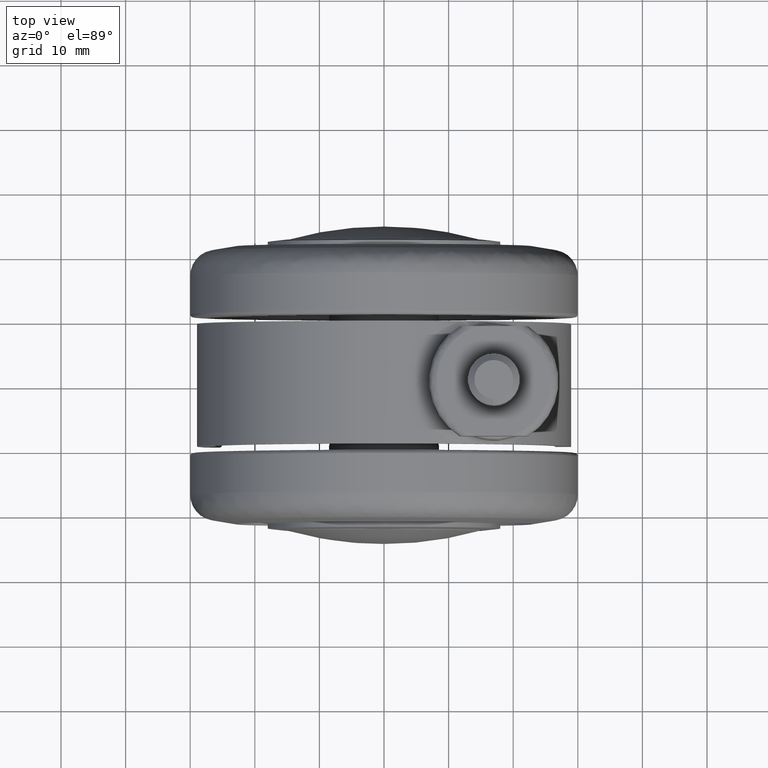
[diagram: clean part render]
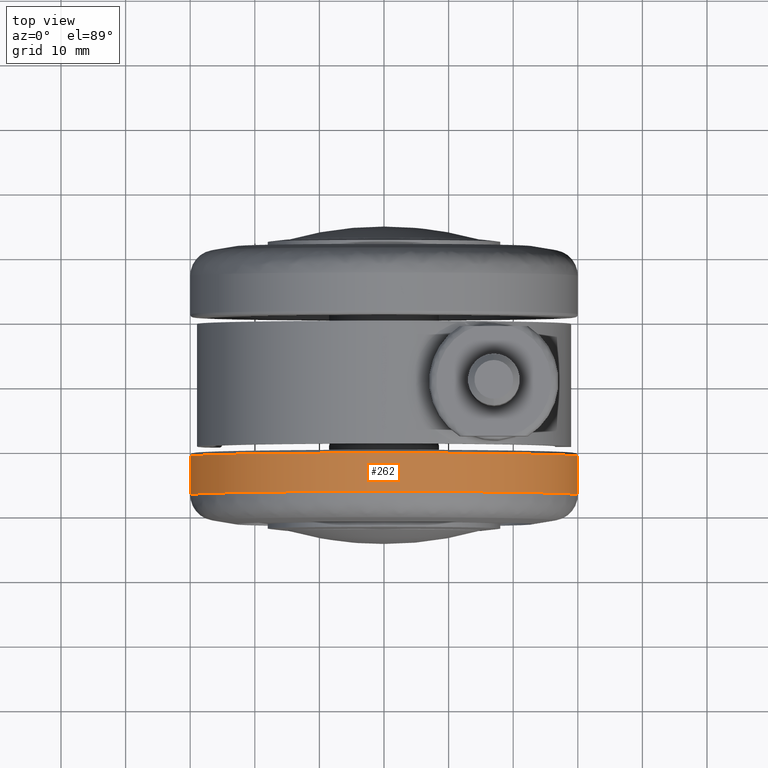
[diagram: same view with one face highlighted and labeled with its STEP entity id]
A machine part, top view. The second image highlights one B-rep face of the part: STEP entity #262.
In plain terms, the highlighted cylindrical surface (partial cylindrical patch) has radius 30 mm, axis along (-0, 1, -0).
Its self-contained STEP definition (entity closure, byte-faithful):
#262=ADVANCED_FACE('',(#1362),#1361,.T.);
#1361=CYLINDRICAL_SURFACE('',#3993,3.00000000000E+01);
#1362=FACE_OUTER_BOUND('',#3994,.T.);
#3990=CARTESIAN_POINT('',(0.00000000000E+00,0.00000000000E+00,5.47813987732E+00));
#3991=DIRECTION('',(-0.00000000000E+00,-0.00000000000E+00,-1.00000000000E+00));
#3992=DIRECTION('',(1.00000000000E+00,1.22464679915E-16,0.00000000000E+00));
#3993=AXIS2_PLACEMENT_3D('',#3990,#3991,#3992);
#3994=EDGE_LOOP('',(#5000,#5001,#5002,#5003));
#5000=ORIENTED_EDGE('',*,*,#5487,.T.);
#5001=ORIENTED_EDGE('',*,*,#5484,.T.);
#5002=ORIENTED_EDGE('',*,*,#5483,.T.);
#5003=ORIENTED_EDGE('',*,*,#5486,.F.);
#5483=EDGE_CURVE('',#7311,#7310,#7330,.T.);
#5484=EDGE_CURVE('',#7336,#7311,#7337,.T.);
#5486=EDGE_CURVE('',#7343,#7310,#7350,.T.);
#5487=EDGE_CURVE('',#7343,#7336,#7356,.T.);
#7310=VERTEX_POINT('',#9417);
#7311=VERTEX_POINT('',#9418);
#7330=CIRCLE('',#9433,3.00000000000E+01);
#7336=VERTEX_POINT('',#9434);
#7337=(BOUNDED_CURVE() B_SPLINE_CURVE(1,(#9435,#9436),.UNSPECIFIED.,.F.,.F.) B_SPLINE_CURVE_WITH_KNOTS((2,2),(8.33333347523E-02,9.16666668865E-01),.UNSPECIFIED.) CURVE() GEOMETRIC_REPRESENTATION_ITEM() RATIONAL_B_SPLINE_CURVE((1.00000000000E+00,1.00000000000E+00)) REPRESENTATION_ITEM('') );
#7343=VERTEX_POINT('',#9437);
#7350=(BOUNDED_CURVE() B_SPLINE_CURVE(1,(#9442,#9443),.UNSPECIFIED.,.F.,.F.) B_SPLINE_CURVE_WITH_KNOTS((2,2),(8.33333333333E-02,9.16666666667E-01),.UNSPECIFIED.) CURVE() GEOMETRIC_REPRESENTATION_ITEM() RATIONAL_B_SPLINE_CURVE((7.50000000000E-01,7.50000000000E-01)) REPRESENTATION_ITEM('') );
#7356=CIRCLE('',#9447,3.00000000000E+01);
#9417=CARTESIAN_POINT('',(-3.00000000000E+01,2.36847578587E-15,2.50000000000E+00));
#9418=CARTESIAN_POINT('',(3.00000000000E+01,0.00000000000E+00,2.50000000000E+00));
#9430=CARTESIAN_POINT('',(0.00000000000E+00,0.00000000000E+00,2.50000000000E+00));
#9431=DIRECTION('',(0.00000000000E+00,0.00000000000E+00,1.00000000000E+00));
#9432=DIRECTION('',(1.00000000000E+00,-1.22460635382E-16,0.00000000000E+00));
#9433=AXIS2_PLACEMENT_3D('',#9430,#9431,#9432);
#9434=CARTESIAN_POINT('',(3.00000000000E+01,-2.36847578587E-15,8.45627996854E+00));
#9435=CARTESIAN_POINT('',(3.00000000000E+01,3.67394039744E-15,8.45627995840E+00));
#9436=CARTESIAN_POINT('',(3.00000000000E+01,3.67394039744E-15,2.49999998428E+00));
#9437=CARTESIAN_POINT('',(-3.00000000000E+01,3.67394039744E-15,8.45627996854E+00));
#9442=CARTESIAN_POINT('',(-3.00000000000E+01,-3.55271367880E-15,8.45627996854E+00));
#9443=CARTESIAN_POINT('',(-3.00000000000E+01,-3.55271367880E-15,2.50000000000E+00));
#9444=CARTESIAN_POINT('',(0.00000000000E+00,0.00000000000E+00,8.45627996854E+00));
#9445=DIRECTION('',(0.00000000000E+00,0.00000000000E+00,-1.00000000000E+00));
#9446=DIRECTION('',(-1.00000000000E+00,4.04453249757E-21,0.00000000000E+00));
#9447=AXIS2_PLACEMENT_3D('',#9444,#9445,#9446);